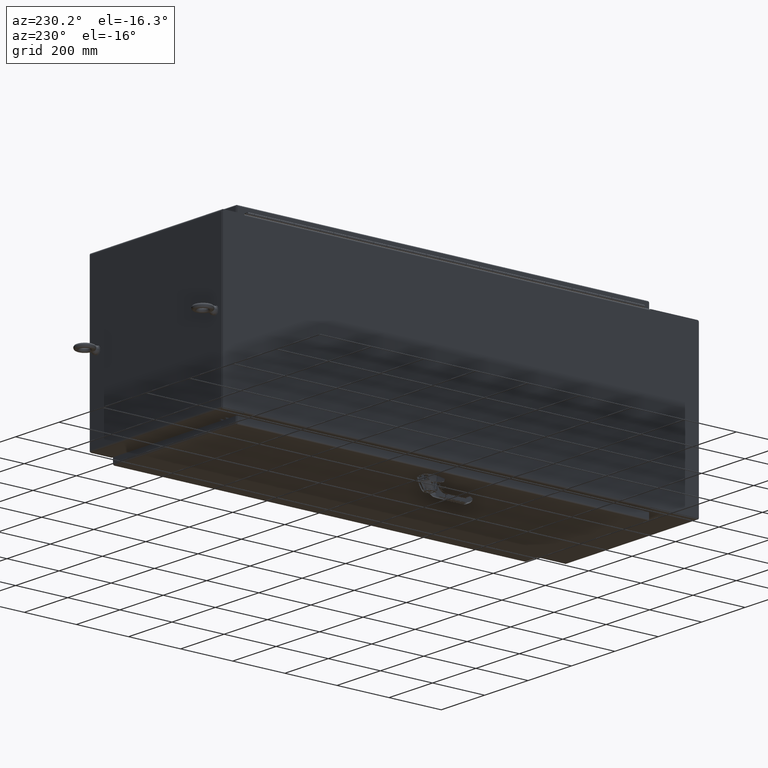
[diagram: clean part render]
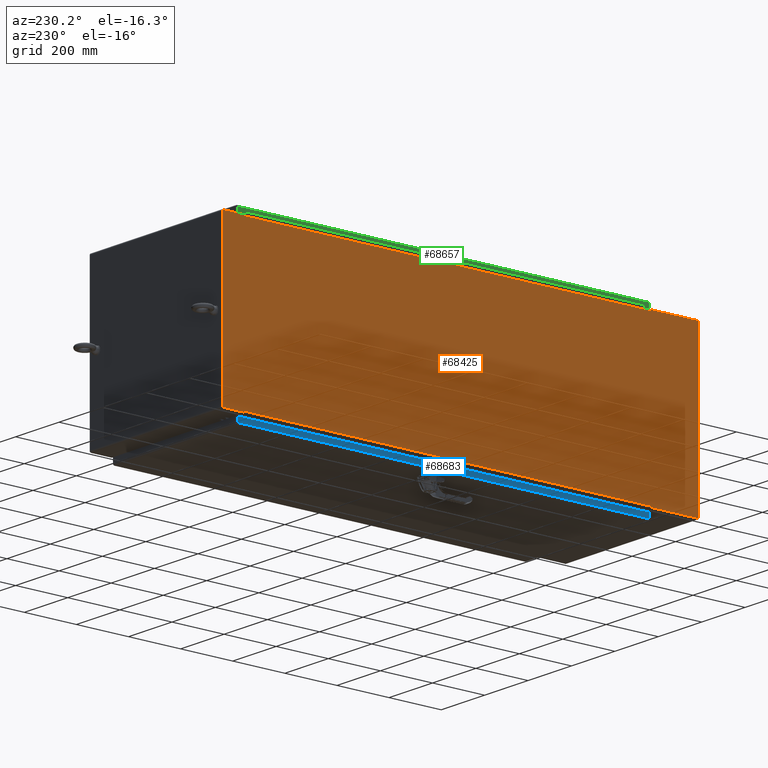
[diagram: same view with three faces highlighted in distinct colors, each labeled with its STEP entity id]
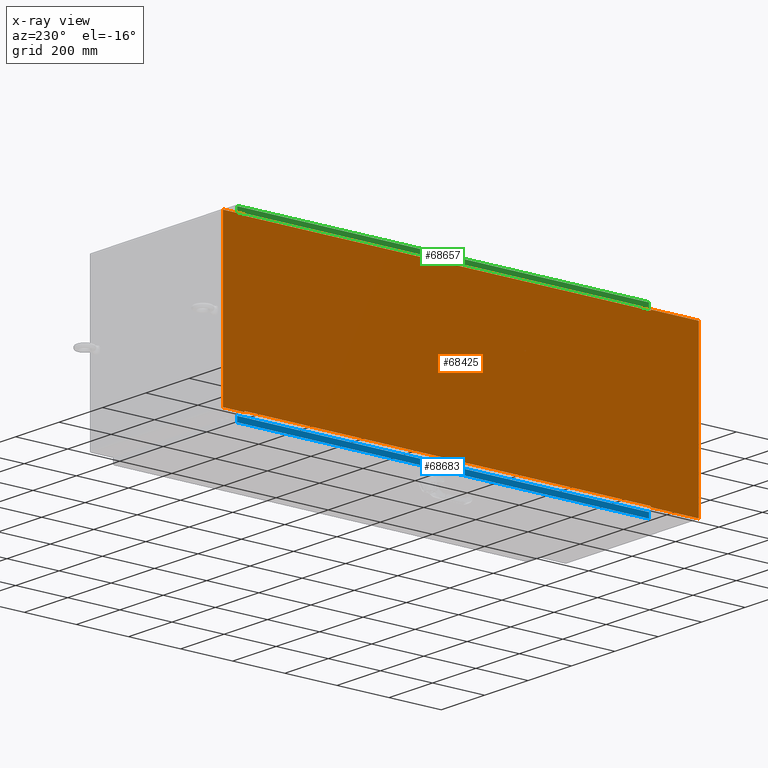
[diagram: x-ray of the same camera — body ghosted, the three highlighted faces saturated]
A machine part, auxiliary view with three faces highlighted in distinct colors.
The next image is the same camera in x-ray (body ghosted, the three faces saturated) — at least one of them is partly hidden behind the body in this view.
Their STEP definitions:

[orange] entity #68425 — the highlighted planar face has unit normal (-1, -0, -0).
#9230=PLANE('',#72244);
#10416=FACE_OUTER_BOUND('',#13376,.T.);
#13376=EDGE_LOOP('',(#50547,#50548,#50549,#50550,#50551,#50552,#50553,#50554,
#50555,#50556,#50557,#50558,#50559,#50560,#50561,#50562,#50563,#50564,#50565,
#50566));
#20088=LINE('',#96822,#25254);
#20095=LINE('',#96844,#25261);
#20098=LINE('',#96850,#25264);
#20101=LINE('',#96858,#25267);
#20104=LINE('',#96862,#25270);
#20107=LINE('',#96868,#25273);
#20122=LINE('',#96898,#25288);
#20125=LINE('',#96904,#25291);
#20127=LINE('',#96907,#25293);
#20129=LINE('',#96911,#25295);
#20131=LINE('',#96916,#25297);
#20133=LINE('',#96919,#25299);
#20135=LINE('',#96923,#25301);
#20137=LINE('',#96928,#25303);
#20139=LINE('',#96932,#25305);
#20141=LINE('',#96935,#25307);
#20142=LINE('',#96938,#25308);
#20144=LINE('',#96942,#25310);
#20146=LINE('',#96945,#25312);
#20147=LINE('',#96946,#25313);
#25254=VECTOR('',#78759,0.393700787401575);
#25261=VECTOR('',#78786,0.393700787401575);
#25264=VECTOR('',#78791,0.393700787401575);
#25267=VECTOR('',#78796,0.393700787401575);
#25270=VECTOR('',#78801,0.393700787401575);
#25273=VECTOR('',#78806,0.393700787401575);
#25288=VECTOR('',#78825,0.393700787401575);
#25291=VECTOR('',#78830,0.393700787401575);
#25293=VECTOR('',#78834,0.393700787401575);
#25295=VECTOR('',#78838,0.393700787401575);
#25297=VECTOR('',#78842,0.393700787401575);
#25299=VECTOR('',#78846,0.393700787401575);
#25301=VECTOR('',#78850,0.393700787401575);
#25303=VECTOR('',#78854,0.393700787401575);
#25305=VECTOR('',#78858,0.393700787401575);
#25307=VECTOR('',#78862,0.393700787401575);
#25308=VECTOR('',#78865,0.393700787401575);
#25310=VECTOR('',#78869,0.393700787401575);
#25312=VECTOR('',#78873,0.393700787401575);
#25313=VECTOR('',#78874,0.393700787401575);
#30405=VERTEX_POINT('',#96813);
#30406=VERTEX_POINT('',#96817);
#30410=VERTEX_POINT('',#96835);
#30411=VERTEX_POINT('',#96839);
#30413=VERTEX_POINT('',#96848);
#30416=VERTEX_POINT('',#96855);
#30417=VERTEX_POINT('',#96857);
#30419=VERTEX_POINT('',#96866);
#30432=VERTEX_POINT('',#96897);
#30433=VERTEX_POINT('',#96901);
#30434=VERTEX_POINT('',#96903);
#30435=VERTEX_POINT('',#96909);
#30436=VERTEX_POINT('',#96913);
#30437=VERTEX_POINT('',#96915);
#30438=VERTEX_POINT('',#96921);
#30439=VERTEX_POINT('',#96925);
#30440=VERTEX_POINT('',#96927);
#30441=VERTEX_POINT('',#96931);
#30442=VERTEX_POINT('',#96937);
#30443=VERTEX_POINT('',#96941);
#39717=EDGE_CURVE('',#30405,#30406,#20088,.T.);
#39728=EDGE_CURVE('',#30410,#30411,#20095,.T.);
#39731=EDGE_CURVE('',#30406,#30413,#20098,.T.);
#39734=EDGE_CURVE('',#30417,#30416,#20101,.T.);
#39737=EDGE_CURVE('',#30413,#30417,#20104,.T.);
#39740=EDGE_CURVE('',#30419,#30416,#20107,.T.);
#39755=EDGE_CURVE('',#30432,#30405,#20122,.T.);
#39758=EDGE_CURVE('',#30434,#30433,#20125,.T.);
#39760=EDGE_CURVE('',#30433,#30432,#20127,.T.);
#39762=EDGE_CURVE('',#30411,#30435,#20129,.T.);
#39764=EDGE_CURVE('',#30437,#30436,#20131,.T.);
#39766=EDGE_CURVE('',#30435,#30437,#20133,.T.);
#39768=EDGE_CURVE('',#30438,#30436,#20135,.T.);
#39770=EDGE_CURVE('',#30440,#30439,#20137,.T.);
#39772=EDGE_CURVE('',#30441,#30410,#20139,.T.);
#39774=EDGE_CURVE('',#30439,#30441,#20141,.T.);
#39775=EDGE_CURVE('',#30440,#30442,#20142,.T.);
#39777=EDGE_CURVE('',#30434,#30443,#20144,.T.);
#39779=EDGE_CURVE('',#30442,#30419,#20146,.T.);
#39780=EDGE_CURVE('',#30443,#30438,#20147,.T.);
#50547=ORIENTED_EDGE('',*,*,#39734,.T.);
#50548=ORIENTED_EDGE('',*,*,#39740,.F.);
#50549=ORIENTED_EDGE('',*,*,#39779,.F.);
#50550=ORIENTED_EDGE('',*,*,#39775,.F.);
#50551=ORIENTED_EDGE('',*,*,#39770,.T.);
#50552=ORIENTED_EDGE('',*,*,#39774,.T.);
#50553=ORIENTED_EDGE('',*,*,#39772,.T.);
#50554=ORIENTED_EDGE('',*,*,#39728,.T.);
#50555=ORIENTED_EDGE('',*,*,#39762,.T.);
#50556=ORIENTED_EDGE('',*,*,#39766,.T.);
#50557=ORIENTED_EDGE('',*,*,#39764,.T.);
#50558=ORIENTED_EDGE('',*,*,#39768,.F.);
#50559=ORIENTED_EDGE('',*,*,#39780,.F.);
#50560=ORIENTED_EDGE('',*,*,#39777,.F.);
#50561=ORIENTED_EDGE('',*,*,#39758,.T.);
#50562=ORIENTED_EDGE('',*,*,#39760,.T.);
#50563=ORIENTED_EDGE('',*,*,#39755,.T.);
#50564=ORIENTED_EDGE('',*,*,#39717,.T.);
#50565=ORIENTED_EDGE('',*,*,#39731,.T.);
#50566=ORIENTED_EDGE('',*,*,#39737,.T.);
#68425=ADVANCED_FACE('',(#10416),#9230,.T.);
#72244=AXIS2_PLACEMENT_3D('',#96944,#78871,#78872);
#78759=DIRECTION('',(-4.55790198861459E-17,-1.,0.));
#78786=DIRECTION('',(1.82316079544584E-16,1.,0.));
#78791=DIRECTION('',(1.,0.,0.));
#78796=DIRECTION('',(-1.,0.,0.));
#78801=DIRECTION('',(0.,-1.,0.));
#78806=DIRECTION('',(5.83466846262818E-17,1.,0.));
#78825=DIRECTION('',(-1.,0.,0.));
#78830=DIRECTION('',(1.,0.,0.));
#78834=DIRECTION('',(0.,-1.,0.));
#78838=DIRECTION('',(-1.,0.,0.));
#78842=DIRECTION('',(1.,0.,0.));
#78846=DIRECTION('',(0.,1.,0.));
#78850=DIRECTION('',(-1.75040053878845E-16,-1.,0.));
#78854=DIRECTION('',(-1.,0.,0.));
#78858=DIRECTION('',(1.,0.,0.));
#78862=DIRECTION('',(0.,1.,0.));
#78865=DIRECTION('',(-1.75040053878845E-16,-1.,0.));
#78869=DIRECTION('',(5.83466846262818E-17,1.,0.));
#78871=DIRECTION('center_axis',(0.,0.,1.));
#78872=DIRECTION('ref_axis',(1.,0.,0.));
#78873=DIRECTION('',(-1.,4.67853383871256E-16,0.));
#78874=DIRECTION('',(1.,-2.33926691935628E-16,0.));
#96813=CARTESIAN_POINT('',(-11.817875,32.6875,0.104));
#96817=CARTESIAN_POINT('',(-11.817875,-28.6875,0.104));
#96822=CARTESIAN_POINT('',(-11.817875,-14.34375,0.104));
#96835=CARTESIAN_POINT('',(11.817875,-28.6875,0.104));
#96839=CARTESIAN_POINT('',(11.817875,32.6875,0.104));
#96844=CARTESIAN_POINT('',(11.817875,16.34375,0.104));
#96848=CARTESIAN_POINT('',(-11.817675,-28.6875,0.104));
#96850=CARTESIAN_POINT('',(-5.9088375,-28.6875,0.104));
#96855=CARTESIAN_POINT('',(-11.9585,-28.6877,0.104));
#96857=CARTESIAN_POINT('',(-11.817675,-28.6877,0.104));
#96858=CARTESIAN_POINT('',(-5.97925,-28.6877,0.104));
#96862=CARTESIAN_POINT('',(-11.817675,-14.34385,0.104));
#96866=CARTESIAN_POINT('',(-11.9585,-35.9585,0.104));
#96868=CARTESIAN_POINT('',(-11.9585,-35.9585,0.104));
#96897=CARTESIAN_POINT('',(-11.817675,32.6875,0.104));
#96898=CARTESIAN_POINT('',(-5.97925,32.6875,0.104));
#96901=CARTESIAN_POINT('',(-11.817675,32.6877,0.104));
#96903=CARTESIAN_POINT('',(-11.9585,32.6877,0.104));
#96904=CARTESIAN_POINT('',(-5.9088375,32.6877,0.104));
#96907=CARTESIAN_POINT('',(-11.817675,16.34375,0.104));
#96909=CARTESIAN_POINT('',(11.817675,32.6875,0.104));
#96911=CARTESIAN_POINT('',(5.90883750000001,32.6875,0.104));
#96913=CARTESIAN_POINT('',(11.9585,32.6877,0.104));
#96915=CARTESIAN_POINT('',(11.817675,32.6877,0.104));
#96916=CARTESIAN_POINT('',(5.97925000000001,32.6877,0.104));
#96919=CARTESIAN_POINT('',(11.817675,16.34385,0.104));
#96921=CARTESIAN_POINT('',(11.9585,35.9585,0.104));
#96923=CARTESIAN_POINT('',(11.9585,35.9585,0.104));
#96925=CARTESIAN_POINT('',(11.817675,-28.6877,0.104));
#96927=CARTESIAN_POINT('',(11.9585,-28.6877,0.104));
#96928=CARTESIAN_POINT('',(5.9088375,-28.6877,0.104));
#96931=CARTESIAN_POINT('',(11.817675,-28.6875,0.104));
#96932=CARTESIAN_POINT('',(5.97925,-28.6875,0.104));
#96935=CARTESIAN_POINT('',(11.817675,-14.34375,0.104));
#96937=CARTESIAN_POINT('',(11.9585,-35.9585,0.104));
#96938=CARTESIAN_POINT('',(11.9585,35.9585,0.104));
#96941=CARTESIAN_POINT('',(-11.9585,35.9585,0.104));
#96942=CARTESIAN_POINT('',(-11.9585,-35.9585,0.104));
#96944=CARTESIAN_POINT('Origin',(2.09805925913415E-15,-2.16207731889403E-15,
0.104));
#96945=CARTESIAN_POINT('',(11.9585,-35.9585,0.104));
#96946=CARTESIAN_POINT('',(-11.9585,35.9585,0.104));

[blue] entity #68683 — the highlighted planar face has unit normal (-1, -0, -0).
#9379=PLANE('',#72701);
#10674=FACE_OUTER_BOUND('',#13646,.T.);
#13646=EDGE_LOOP('',(#51803,#51804,#51805,#51806));
#20532=LINE('',#98466,#25698);
#20538=LINE('',#98500,#25704);
#20543=LINE('',#98576,#25709);
#20545=LINE('',#98579,#25711);
#25698=VECTOR('',#80163,0.393700787401575);
#25704=VECTOR('',#80173,0.393700787401575);
#25709=VECTOR('',#80180,0.393700787401575);
#25711=VECTOR('',#80184,0.393700787401575);
#30825=VERTEX_POINT('',#98464);
#30826=VERTEX_POINT('',#98465);
#30832=VERTEX_POINT('',#98499);
#30834=VERTEX_POINT('',#98575);
#40395=EDGE_CURVE('',#30825,#30826,#20532,.T.);
#40403=EDGE_CURVE('',#30832,#30826,#20538,.T.);
#40410=EDGE_CURVE('',#30825,#30834,#20543,.T.);
#40412=EDGE_CURVE('',#30834,#30832,#20545,.T.);
#51803=ORIENTED_EDGE('',*,*,#40395,.T.);
#51804=ORIENTED_EDGE('',*,*,#40403,.F.);
#51805=ORIENTED_EDGE('',*,*,#40412,.F.);
#51806=ORIENTED_EDGE('',*,*,#40410,.F.);
#68683=ADVANCED_FACE('',(#10674),#9379,.T.);
#72701=AXIS2_PLACEMENT_3D('',#98580,#80185,#80186);
#80163=DIRECTION('',(-1.78934138336119E-16,-1.,1.50640303860999E-33));
#80173=DIRECTION('',(-5.39030285815812E-15,9.61424228238108E-31,1.));
#80180=DIRECTION('',(5.39030285815812E-15,-9.61424228238108E-31,-1.));
#80184=DIRECTION('',(-1.79213603716499E-16,-1.,2.47851072088747E-16));
#80185=DIRECTION('center_axis',(1.,-1.78934138336119E-16,5.38453187712212E-15));
#80186=DIRECTION('ref_axis',(5.38453187712212E-15,1.79213603716497E-16,
-1.));
#98464=CARTESIAN_POINT('',(11.25,31.1140428932188,-0.093750000000014));
#98465=CARTESIAN_POINT('',(11.25,-31.1140428932188,-0.0937499999999987));
#98466=CARTESIAN_POINT('',(11.25,2.26095384692185E-15,-0.0937499999999987));
#98499=CARTESIAN_POINT('',(11.25,-31.1140428932188,-0.895999999999998));
#98500=CARTESIAN_POINT('',(11.25,-31.1140428932188,-0.0937499999999987));
#98575=CARTESIAN_POINT('',(11.25,31.1140428932188,-0.896000000000013));
#98576=CARTESIAN_POINT('',(11.25,31.1140428932188,-0.093750000000014));
#98579=CARTESIAN_POINT('',(11.25,31.1140428932188,-0.896000000000013));
#98580=CARTESIAN_POINT('Origin',(11.25,-1.0374956722955E-15,-0.391231987137295));

[green] entity #68657 — the highlighted planar face has unit normal (-1, 0, -0).
#9364=PLANE('',#72681);
#10648=FACE_OUTER_BOUND('',#13620,.T.);
#13620=EDGE_LOOP('',(#51691,#51692,#51693,#51694,#51695,#51696,#51697,#51698));
#20489=LINE('',#98199,#25655);
#20493=LINE('',#98207,#25659);
#20496=LINE('',#98213,#25662);
#20499=LINE('',#98219,#25665);
#20500=LINE('',#98221,#25666);
#20501=LINE('',#98223,#25667);
#20502=LINE('',#98225,#25668);
#20503=LINE('',#98226,#25669);
#25655=VECTOR('',#80084,0.393700787401575);
#25659=VECTOR('',#80090,0.393700787401575);
#25662=VECTOR('',#80095,0.393700787401575);
#25665=VECTOR('',#80100,0.393700787401575);
#25666=VECTOR('',#80101,0.393700787401575);
#25667=VECTOR('',#80102,0.393700787401575);
#25668=VECTOR('',#80103,0.393700787401575);
#25669=VECTOR('',#80104,0.393700787401575);
#30795=VERTEX_POINT('',#98197);
#30796=VERTEX_POINT('',#98198);
#30799=VERTEX_POINT('',#98206);
#30801=VERTEX_POINT('',#98212);
#30803=VERTEX_POINT('',#98218);
#30804=VERTEX_POINT('',#98220);
#30805=VERTEX_POINT('',#98222);
#30806=VERTEX_POINT('',#98224);
#40344=EDGE_CURVE('',#30795,#30796,#20489,.T.);
#40348=EDGE_CURVE('',#30799,#30795,#20493,.T.);
#40351=EDGE_CURVE('',#30801,#30799,#20496,.T.);
#40354=EDGE_CURVE('',#30803,#30796,#20499,.T.);
#40355=EDGE_CURVE('',#30804,#30803,#20500,.T.);
#40356=EDGE_CURVE('',#30804,#30805,#20501,.T.);
#40357=EDGE_CURVE('',#30806,#30805,#20502,.T.);
#40358=EDGE_CURVE('',#30801,#30806,#20503,.T.);
#51691=ORIENTED_EDGE('',*,*,#40351,.T.);
#51692=ORIENTED_EDGE('',*,*,#40348,.T.);
#51693=ORIENTED_EDGE('',*,*,#40344,.T.);
#51694=ORIENTED_EDGE('',*,*,#40354,.F.);
#51695=ORIENTED_EDGE('',*,*,#40355,.F.);
#51696=ORIENTED_EDGE('',*,*,#40356,.T.);
#51697=ORIENTED_EDGE('',*,*,#40357,.F.);
#51698=ORIENTED_EDGE('',*,*,#40358,.F.);
#68657=ADVANCED_FACE('',(#10648),#9364,.T.);
#72681=AXIS2_PLACEMENT_3D('',#98217,#80098,#80099);
#80084=DIRECTION('',(-5.38957987097675E-15,2.92202146603589E-16,-1.));
#80090=DIRECTION('',(-4.48624365152037E-17,-1.,-2.29584379369323E-16));
#80095=DIRECTION('',(5.38957987097675E-15,-2.92202146603589E-16,1.));
#80098=DIRECTION('center_axis',(-1.,4.48624365152024E-17,5.38957987097675E-15));
#80099=DIRECTION('ref_axis',(5.38957987097675E-15,4.48034009291242E-17,
1.));
#80100=DIRECTION('',(4.4803400929126E-17,1.,2.92352922075016E-16));
#80101=DIRECTION('',(-5.39030285815812E-15,2.40356057059527E-31,-1.));
#80102=DIRECTION('',(4.48624365152024E-17,1.,-3.18219688369495E-34));
#80103=DIRECTION('',(5.39030285815812E-15,-2.40356057059527E-31,1.));
#80104=DIRECTION('',(4.4803400929126E-17,1.,2.92352922075016E-16));
#98197=CARTESIAN_POINT('',(-11.25,-30.015625,-0.771000000000006));
#98198=CARTESIAN_POINT('',(-11.25,-30.015625,-0.896000000000009));
#98199=CARTESIAN_POINT('',(-11.25,-30.015625,-0.581115993568654));
#98206=CARTESIAN_POINT('',(-11.25,30.015625,-0.770999999999992));
#98207=CARTESIAN_POINT('',(-11.25,15.0078125,-0.770999999999995));
#98212=CARTESIAN_POINT('',(-11.25,30.015625,-0.896000000000002));
#98213=CARTESIAN_POINT('',(-11.25,30.015625,-0.643615993568644));
#98217=CARTESIAN_POINT('Origin',(-11.25,-8.88002239265115E-16,-0.391231987137294));
#98218=CARTESIAN_POINT('',(-11.25,-31.1140428932188,-0.896000000000015));
#98219=CARTESIAN_POINT('',(-11.25,-31.1140428932188,-0.896000000000015));
#98220=CARTESIAN_POINT('',(-11.25,-31.1140428932188,-0.0937500000000154));
#98221=CARTESIAN_POINT('',(-11.25,-31.1140428932188,-0.0937500000000154));
#98222=CARTESIAN_POINT('',(-11.25,31.1140428932188,-0.0937499999999973));
#98223=CARTESIAN_POINT('',(-11.25,-6.03439395573355E-15,-0.0937499999999973));
#98224=CARTESIAN_POINT('',(-11.25,31.1140428932188,-0.895999999999997));
#98225=CARTESIAN_POINT('',(-11.25,31.1140428932188,-0.0937499999999973));
#98226=CARTESIAN_POINT('',(-11.25,-31.1140428932188,-0.896000000000015));